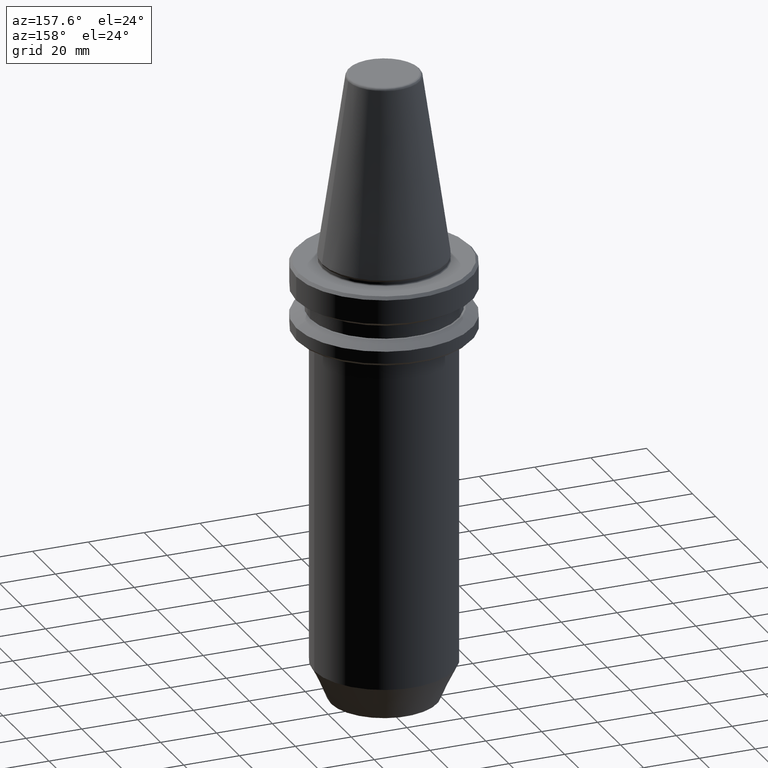
[diagram: clean part render]
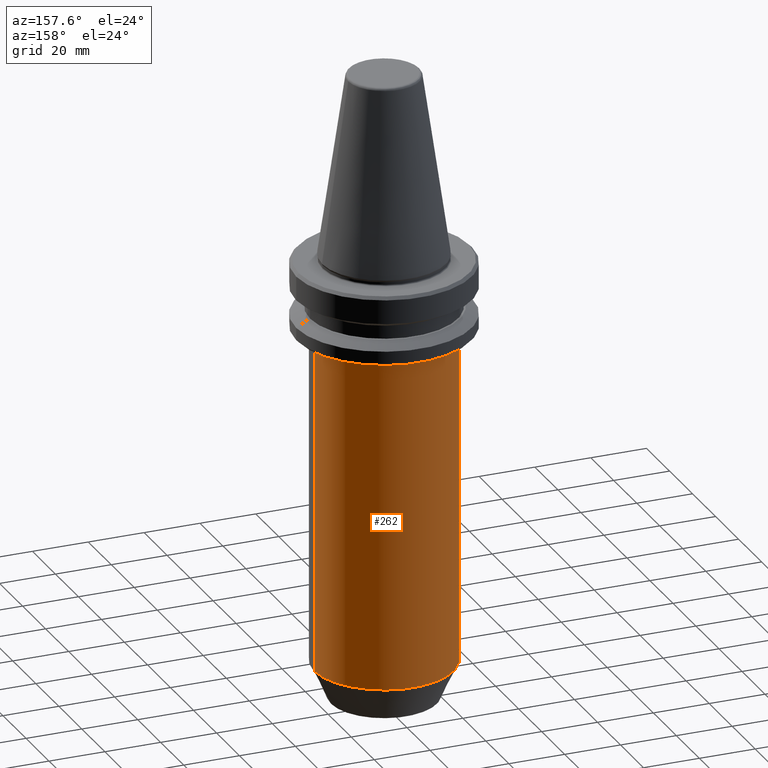
[diagram: same view with one face highlighted and labeled with its STEP entity id]
A machine part, auxiliary view. The second image highlights one B-rep face of the part: STEP entity #262.
In plain terms, the highlighted cylindrical surface (partial cylindrical patch) has radius 25 mm, axis along (-0, -0, 1).
Its self-contained STEP definition (entity closure, byte-faithful):
#5 = DIRECTION ( 'NONE',  ( -0.0000000000000000000, -0.0000000000000000000, 1.000000000000000000 ) ) ;
#59 = CARTESIAN_POINT ( 'NONE',  ( 0.0000000000000000000, 0.0000000000000000000, -146.4442452652828000 ) ) ;
#66 = EDGE_CURVE ( 'NONE', #741, #583, #908, .T. ) ;
#78 = CARTESIAN_POINT ( 'NONE',  ( -25.00000000000000000, 3.061616997868383000E-015, 82.74845858742440900 ) ) ;
#149 = DIRECTION ( 'NONE',  ( -0.0000000000000000000, -0.0000000000000000000, 1.000000000000000000 ) ) ;
#159 = VECTOR ( 'NONE', #149, 1000.000000000000000 ) ;
#163 = DIRECTION ( 'NONE',  ( -0.0000000000000000000, -0.0000000000000000000, 1.000000000000000000 ) ) ;
#189 = EDGE_CURVE ( 'NONE', #304, #741, #718, .T. ) ;
#260 = FACE_OUTER_BOUND ( 'NONE', #620, .T. ) ;
#262 = ADVANCED_FACE ( 'NONE', ( #260 ), #632, .T. ) ;
#263 = CIRCLE ( 'NONE', #269, 25.00000000000000000 ) ;
#269 = AXIS2_PLACEMENT_3D ( 'NONE', #59, #484, #1020 ) ;
#304 = VERTEX_POINT ( 'NONE', #701 ) ;
#333 = CARTESIAN_POINT ( 'NONE',  ( -25.00000000000000000, 3.061616997868383000E-015, -146.4442452652828000 ) ) ;
#359 = ORIENTED_EDGE ( 'NONE', *, *, #820, .T. ) ;
#394 = VERTEX_POINT ( 'NONE', #333 ) ;
#416 = AXIS2_PLACEMENT_3D ( 'NONE', #556, #163, #680 ) ;
#437 = EDGE_CURVE ( 'NONE', #304, #394, #263, .T. ) ;
#463 = DIRECTION ( 'NONE',  ( 1.000000000000000000, 0.0000000000000000000, 0.0000000000000000000 ) ) ;
#472 = CARTESIAN_POINT ( 'NONE',  ( 0.0000000000000000000, 0.0000000000000000000, 82.74845858742440900 ) ) ;
#484 = DIRECTION ( 'NONE',  ( -0.0000000000000000000, -0.0000000000000000000, 1.000000000000000000 ) ) ;
#505 = ORIENTED_EDGE ( 'NONE', *, *, #66, .F. ) ;
#531 = LINE ( 'NONE', #78, #159 ) ;
#532 = AXIS2_PLACEMENT_3D ( 'NONE', #472, #858, #463 ) ;
#540 = CARTESIAN_POINT ( 'NONE',  ( 25.00000000000000000, 0.0000000000000000000, 82.74845858742440900 ) ) ;
#556 = CARTESIAN_POINT ( 'NONE',  ( 0.0000000000000000000, 0.0000000000000000000, -27.31128678844368800 ) ) ;
#575 = VECTOR ( 'NONE', #5, 1000.000000000000000 ) ;
#583 = VERTEX_POINT ( 'NONE', #904 ) ;
#608 = ORIENTED_EDGE ( 'NONE', *, *, #189, .F. ) ;
#620 = EDGE_LOOP ( 'NONE', ( #722, #359, #505, #608 ) ) ;
#632 = CYLINDRICAL_SURFACE ( 'NONE', #532, 25.00000000000000000 ) ;
#680 = DIRECTION ( 'NONE',  ( 1.000000000000000000, 0.0000000000000000000, 0.0000000000000000000 ) ) ;
#701 = CARTESIAN_POINT ( 'NONE',  ( 25.00000000000000000, 0.0000000000000000000, -146.4442452652828000 ) ) ;
#718 = LINE ( 'NONE', #540, #575 ) ;
#722 = ORIENTED_EDGE ( 'NONE', *, *, #437, .T. ) ;
#741 = VERTEX_POINT ( 'NONE', #842 ) ;
#820 = EDGE_CURVE ( 'NONE', #394, #583, #531, .T. ) ;
#842 = CARTESIAN_POINT ( 'NONE',  ( 25.00000000000000000, 0.0000000000000000000, -27.31128678844368800 ) ) ;
#858 = DIRECTION ( 'NONE',  ( -0.0000000000000000000, -0.0000000000000000000, 1.000000000000000000 ) ) ;
#904 = CARTESIAN_POINT ( 'NONE',  ( -25.00000000000000000, 3.061616997868383000E-015, -27.31128678844368800 ) ) ;
#908 = CIRCLE ( 'NONE', #416, 25.00000000000000000 ) ;
#1020 = DIRECTION ( 'NONE',  ( 1.000000000000000000, 0.0000000000000000000, 0.0000000000000000000 ) ) ;